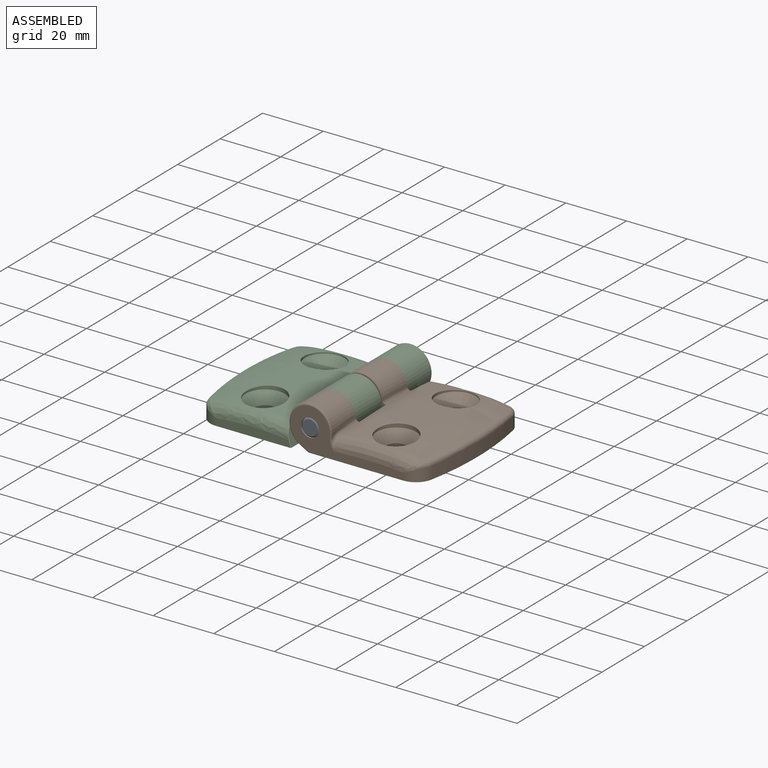
[diagram: assembled view]
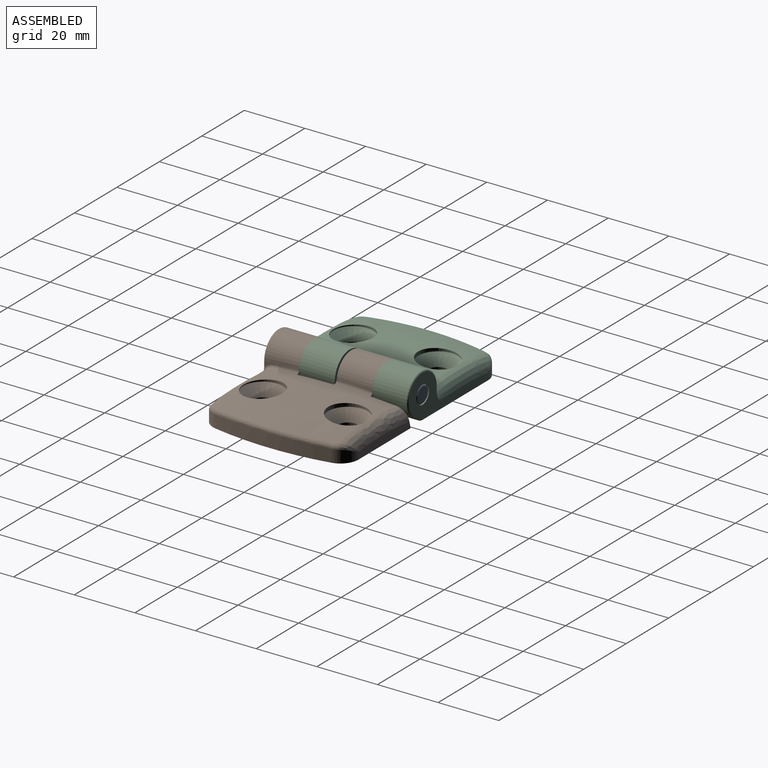
[diagram: assembled view, second angle]
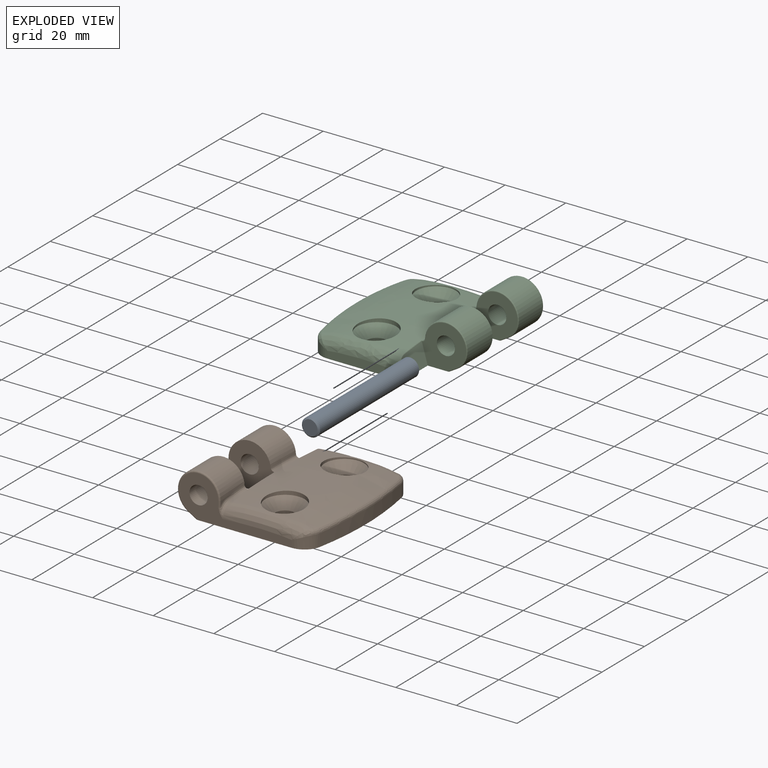
[diagram: exploded view]
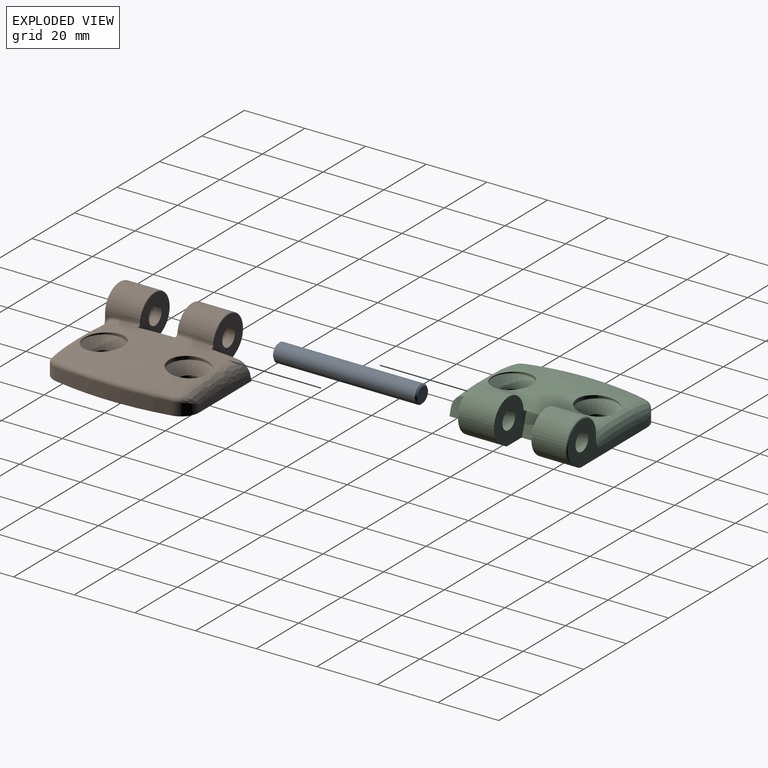
[diagram: exploded view, second angle]
ASSEMBLY  parts=3 mates=2
PART A: 5 faces, bbox 6x47.6x6 mm
  f0: cone r=2.5mm half-angle=45deg, axis (0,1,0), area 12.2mm2, adj f1,f4
  f1: cylinder r=3mm len=46.6mm, axis (0,1,0), area 878.4mm2, adj f0,f2
  f2: cone r=3mm half-angle=45deg, axis (0,-1,0), area 12.2mm2, adj f1,f3
  f3: plane 5x5mm, normal (0,1,0), area 19.6mm2, adj f2
  f4: plane 5x5mm, normal (0,-1,0), area 19.6mm2, adj f0
PART B: 57 faces, bbox 62.6x49.4x20.7 mm
  f0: torus R=210.45mm, axis (-1,0,0), area 2.7mm2, adj f14,f25,f41,f42
  f1: cone r=3.3mm half-angle=1deg, axis (0,0,-1), area 69mm2, adj f2,f16
  f2: cone r=6.5mm half-angle=45deg, axis (0,0,1), area 139.3mm2, adj f1,f3
  f3: cylinder r=6.5mm len=13mm, axis (0,0,-1), area 32.7mm2, adj f2,f13,f14,f15,f17
  f4: torus R=6.7mm, axis (0,-1,0), area 13.4mm2, adj f19,f32,f50,f51
  f5: torus R=6.7mm, axis (0,-1,0), area 13.4mm2, adj f26,f29,f48,f49
  f6: torus R=6.5mm, axis (0,1,0), area 22.4mm2, adj f21,f26,f44,f45
  f7: cone r=3.3mm half-angle=1deg, axis (0,0,-1), area 69mm2, adj f8,f16
  f8: cone r=6.5mm half-angle=45deg, axis (0,0,1), area 139.3mm2, adj f7,f9
  f9: cylinder r=6.5mm len=13mm, axis (0,0,-1), area 32.7mm2, adj f8,f13,f14,f18,f37
  f10: cylinder r=3mm len=11.9mm, axis (0,1,0), area 224.3mm2, adj f21,f29
  f11: cylinder r=100mm len=38.3mm, axis (0,0,-1), area 163.5mm2, adj f16,f22,f23,f33
  f12: cylinder r=3mm len=12mm, axis (0,1,0), area 226.2mm2, adj f30,f32
  f13: torus R=168.15mm, axis (1,0,0), area 362.7mm2, adj f3,f9,f14,f15,f18,f33,f34,f36
  f14: torus R=85mm, axis (1,0,0), area 520.3mm2, adj f0,f3,f9,f13,f17,f37,f41,f43
  f15: torus R=85mm, axis (1,0,0), area 10.7mm2, adj f3,f13,f17
  f16: plane 48.37x39.88mm, normal (0,0,-1), area 1600.7mm2, adj f1,f7,f11,f20,f21,f22,f23,f24
  f17: bspline ~21.25x4.89mm, area 118.8mm2, adj f3,f14,f15,f24,f34,f53
  f18: torus R=85mm, axis (1,0,0), area 10.7mm2, adj f9,f13,f37
  f19: cylinder r=7mm len=13.99mm, axis (0,1,0), area 336.1mm2, adj f4,f20,f30,f43
  f20: plane 11.7x2.49mm, normal (-0.5,0,-0.87), area 33.6mm2, adj f16,f19,f30,f50
  f21: plane 37.33x14.07mm, normal (0,-1,0), area 189.1mm2, adj f6,f10,f16,f22,f37,f38,f44,f45
  f22: cylinder r=6mm len=5.89mm, axis (0,0,-1), area 28.2mm2, adj f11,f16,f21,f39,f40
  f23: cylinder r=6mm len=5.89mm, axis (0,0,-1), area 28.2mm2, adj f11,f16,f24,f35,f36
  f24: plane 24.52x3.07mm, normal (0,1,0), area 65.5mm2, adj f16,f17,f23,f34,f54
  f25: plane 4.65x1.57mm, normal (1,0,0), area 2.1mm2, adj f0,f26,f42,f45
  f26: cylinder r=7mm len=14mm, axis (0,1,0), area 324.1mm2, adj f5,f6,f25,f27,f41
  f27: plane 11.1x2.49mm, normal (-0.5,0,-0.87), area 31.9mm2, adj f16,f26,f44,f49
  f28: plane 11.94x7.17mm, normal (-0.96,0,0.28), area 87.1mm2, adj f16,f29,f47,f48,f55
  f29: plane 14.62x14.2mm, normal (0,1,0), area 131mm2, adj f5,f10,f16,f28,f48,f49
  f30: plane 14.86x14.55mm, normal (0,-1,0), area 139mm2, adj f12,f16,f19,f20,f43,f55,f56
  f31: plane 11.62x6.81mm, normal (-0.96,0,0.28), area 74mm2, adj f16,f32,f51,f52,f53,f54
  f32: plane 14.63x14.2mm, normal (0,1,0), area 131mm2, adj f4,f12,f16,f31,f50,f51
  f33: bspline ~38.31x2.94mm, area 73.9mm2, adj f11,f13,f36,f40
  f34: bspline ~7.63x5mm, area 32mm2, adj f13,f17,f24,f35
  f35: bspline ~5.23x3.62mm, area 5mm2, adj f23,f34,f36
  f36: bspline ~1.99x1.63mm, area 3.5mm2, adj f13,f23,f33,f35
  f37: bspline ~20.16x4.75mm, area 115.4mm2, adj f9,f14,f18,f21,f38,f42
  f38: bspline ~7.67x5.01mm, area 32mm2, adj f13,f21,f37,f39
  f39: bspline ~5.21x3.62mm, area 5mm2, adj f22,f38,f40
  f40: bspline ~1.99x1.63mm, area 3.5mm2, adj f13,f22,f33,f39
  f41: bspline ~6.51x1.41mm, area 10.5mm2, adj f0,f14,f26,f48
  f42: bspline ~5x4.61mm, area 7.6mm2, adj f0,f25,f37,f46
  f43: bspline ~11.99x1.32mm, area 18.4mm2, adj f14,f19,f30,f51,f56
  f44: cylinder r=0.5mm len=3.49mm, axis (0.87,0,-0.5), area 2.6mm2, adj f6,f16,f21,f27
  f45: cylinder r=0.5mm len=1.57mm, axis (0,0,1), area 1.2mm2, adj f6,f21,f25,f46
  f46: bspline ~3.59x1.51mm, area 1mm2, adj f21,f42,f45
  f47: bspline ~12.3x0.59mm, area 4.3mm2, adj f14,f28,f48,f56
  f48: bspline ~1.6x1.24mm, area 0.8mm2, adj f5,f14,f28,f29,f41,f47
  f49: cylinder r=0.3mm len=3.09mm, axis (0.87,0,-0.5), area 1.5mm2, adj f5,f16,f27,f29
  f50: cylinder r=0.3mm len=3.09mm, axis (0.87,0,-0.5), area 1.5mm2, adj f4,f16,f20,f32
  f51: bspline ~1.6x1.25mm, area 0.8mm2, adj f4,f14,f31,f32,f43,f52
  f52: bspline ~8.57x0.89mm, area 3mm2, adj f14,f31,f51,f53
  f53: bspline ~4.11x3.64mm, area 2.4mm2, adj f17,f31,f52,f54
  f54: cylinder r=0.3mm len=2.41mm, axis (0.28,0,0.96), area 1.1mm2, adj f16,f24,f31,f53
  f55: cylinder r=0.3mm len=7.32mm, axis (-0.28,0,-0.96), area 3.5mm2, adj f16,f28,f30,f56
  f56: bspline ~0.55x0.52mm, area 0.1mm2, adj f14,f30,f43,f47,f55
PART C: 57 faces, bbox 62.6x49.4x20.7 mm
  f0: torus R=210.45mm, axis (1,0,0), area 2.7mm2, adj f14,f25,f41,f42
  f1: cone r=3.3mm half-angle=1deg, axis (0,0,-1), area 69mm2, adj f2,f16
  f2: cone r=6.5mm half-angle=45deg, axis (0,0,1), area 139.3mm2, adj f1,f3
  f3: cylinder r=6.5mm len=13mm, axis (0,0,-1), area 32.7mm2, adj f2,f13,f14,f15,f17
  f4: torus R=6.7mm, axis (0,1,0), area 13.4mm2, adj f19,f32,f50,f51
  f5: torus R=6.7mm, axis (0,1,0), area 13.4mm2, adj f26,f29,f48,f49
  f6: torus R=6.5mm, axis (0,-1,0), area 22.4mm2, adj f21,f26,f44,f45
  f7: cone r=3.3mm half-angle=1deg, axis (0,0,-1), area 69mm2, adj f8,f16
  f8: cone r=6.5mm half-angle=45deg, axis (0,0,1), area 139.3mm2, adj f7,f9
  f9: cylinder r=6.5mm len=13mm, axis (0,0,-1), area 32.7mm2, adj f8,f13,f14,f18,f37
  f10: cylinder r=3mm len=11.9mm, axis (0,-1,0), area 224.3mm2, adj f21,f29
  f11: cylinder r=100mm len=38.3mm, axis (0,0,-1), area 163.5mm2, adj f16,f22,f23,f33
  f12: cylinder r=3mm len=12mm, axis (0,-1,0), area 226.2mm2, adj f30,f32
  f13: torus R=168.15mm, axis (-1,0,0), area 362.7mm2, adj f3,f9,f14,f15,f18,f33,f34,f36
  f14: torus R=85mm, axis (-1,0,0), area 520.3mm2, adj f0,f3,f9,f13,f17,f37,f41,f43
  f15: torus R=85mm, axis (-1,0,0), area 10.7mm2, adj f3,f13,f17
  f16: plane 48.37x39.88mm, normal (0,0,-1), area 1600.7mm2, adj f1,f7,f11,f20,f21,f22,f23,f24
  f17: bspline ~21.25x4.89mm, area 118.8mm2, adj f3,f14,f15,f24,f34,f53
  f18: torus R=85mm, axis (-1,0,0), area 10.7mm2, adj f9,f13,f37
  f19: cylinder r=7mm len=13.99mm, axis (0,-1,0), area 336.1mm2, adj f4,f20,f30,f43
  f20: plane 11.7x2.49mm, normal (0.5,0,-0.87), area 33.6mm2, adj f16,f19,f30,f50
  f21: plane 37.33x14.07mm, normal (0,1,0), area 189.1mm2, adj f6,f10,f16,f22,f37,f38,f44,f45
  f22: cylinder r=6mm len=5.89mm, axis (0,0,-1), area 28.2mm2, adj f11,f16,f21,f39,f40
  f23: cylinder r=6mm len=5.89mm, axis (0,0,-1), area 28.2mm2, adj f11,f16,f24,f35,f36
  f24: plane 24.52x3.07mm, normal (0,-1,0), area 65.5mm2, adj f16,f17,f23,f34,f54
  f25: plane 4.65x1.57mm, normal (-1,0,0), area 2.1mm2, adj f0,f26,f42,f45
  f26: cylinder r=7mm len=14mm, axis (0,-1,0), area 324.1mm2, adj f5,f6,f25,f27,f41
  f27: plane 11.1x2.49mm, normal (0.5,0,-0.87), area 31.9mm2, adj f16,f26,f44,f49
  f28: plane 11.94x7.17mm, normal (0.96,0,0.28), area 87.1mm2, adj f16,f29,f47,f48,f55
  f29: plane 14.62x14.2mm, normal (0,-1,0), area 131mm2, adj f5,f10,f16,f28,f48,f49
  f30: plane 14.86x14.55mm, normal (0,1,0), area 139mm2, adj f12,f16,f19,f20,f43,f55,f56
  f31: plane 11.62x6.81mm, normal (0.96,0,0.28), area 74mm2, adj f16,f32,f51,f52,f53,f54
  f32: plane 14.63x14.2mm, normal (0,-1,0), area 131mm2, adj f4,f12,f16,f31,f50,f51
  f33: bspline ~38.31x2.94mm, area 73.9mm2, adj f11,f13,f36,f40
  f34: bspline ~7.63x5mm, area 32mm2, adj f13,f17,f24,f35
  f35: bspline ~5.23x3.62mm, area 5mm2, adj f23,f34,f36
  f36: bspline ~1.99x1.63mm, area 3.5mm2, adj f13,f23,f33,f35
  f37: bspline ~20.16x4.75mm, area 115.4mm2, adj f9,f14,f18,f21,f38,f42
  f38: bspline ~7.67x5.01mm, area 32mm2, adj f13,f21,f37,f39
  f39: bspline ~5.21x3.62mm, area 5mm2, adj f22,f38,f40
  f40: bspline ~1.99x1.63mm, area 3.5mm2, adj f13,f22,f33,f39
  f41: bspline ~6.51x1.41mm, area 10.5mm2, adj f0,f14,f26,f48
  f42: bspline ~5x4.61mm, area 7.6mm2, adj f0,f25,f37,f46
  f43: bspline ~11.99x1.32mm, area 18.4mm2, adj f14,f19,f30,f51,f56
  f44: cylinder r=0.5mm len=3.49mm, axis (-0.87,0,-0.5), area 2.6mm2, adj f6,f16,f21,f27
  f45: cylinder r=0.5mm len=1.57mm, axis (0,0,1), area 1.2mm2, adj f6,f21,f25,f46
  f46: bspline ~3.59x1.51mm, area 1mm2, adj f21,f42,f45
  f47: bspline ~12.3x0.59mm, area 4.3mm2, adj f14,f28,f48,f56
  f48: bspline ~1.6x1.24mm, area 0.8mm2, adj f5,f14,f28,f29,f41,f47
  f49: cylinder r=0.3mm len=3.09mm, axis (-0.87,0,-0.5), area 1.5mm2, adj f5,f16,f27,f29
  f50: cylinder r=0.3mm len=3.09mm, axis (-0.87,0,-0.5), area 1.5mm2, adj f4,f16,f20,f32
  f51: bspline ~1.6x1.25mm, area 0.8mm2, adj f4,f14,f31,f32,f43,f52
  f52: bspline ~8.57x0.89mm, area 3mm2, adj f14,f31,f51,f53
  f53: bspline ~4.11x3.64mm, area 2.4mm2, adj f17,f31,f52,f54
  f54: cylinder r=0.3mm len=2.41mm, axis (-0.28,0,0.96), area 1.1mm2, adj f16,f24,f31,f53
  f55: cylinder r=0.3mm len=7.32mm, axis (0.28,0,-0.96), area 3.5mm2, adj f16,f28,f30,f56
  f56: bspline ~0.55x0.52mm, area 0.1mm2, adj f14,f30,f43,f47,f55
PLACE A rot(axis=(0.93,0.16,0.32),0deg) t=(-43.22,-9.18,23.38)mm
PLACE B rot(axis=(0.93,0.16,0.32),0deg) t=(-43.22,-8.98,23.38)mm
PLACE C rot(axis=(0.93,0.16,0.32),0deg) t=(-43.22,-9.38,23.38)mm
MATE fastened B.f6 <-> A.f0  axis (0,-1,0) through (-43.22,-32.98,30.88)mm
MATE fastened C.f6 <-> A.f0  axis (0,1,0) through (-43.22,14.62,30.88)mm
